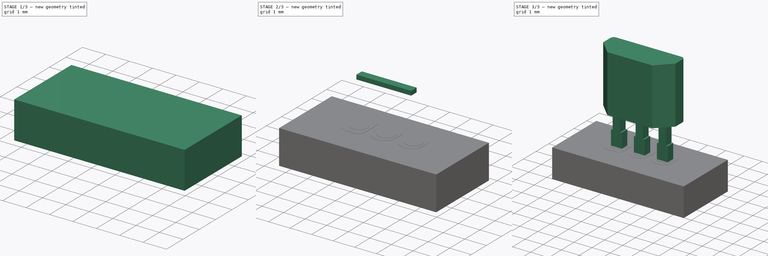
[diagram: build sequence overview — one tinted view per stage of 3, left to right]
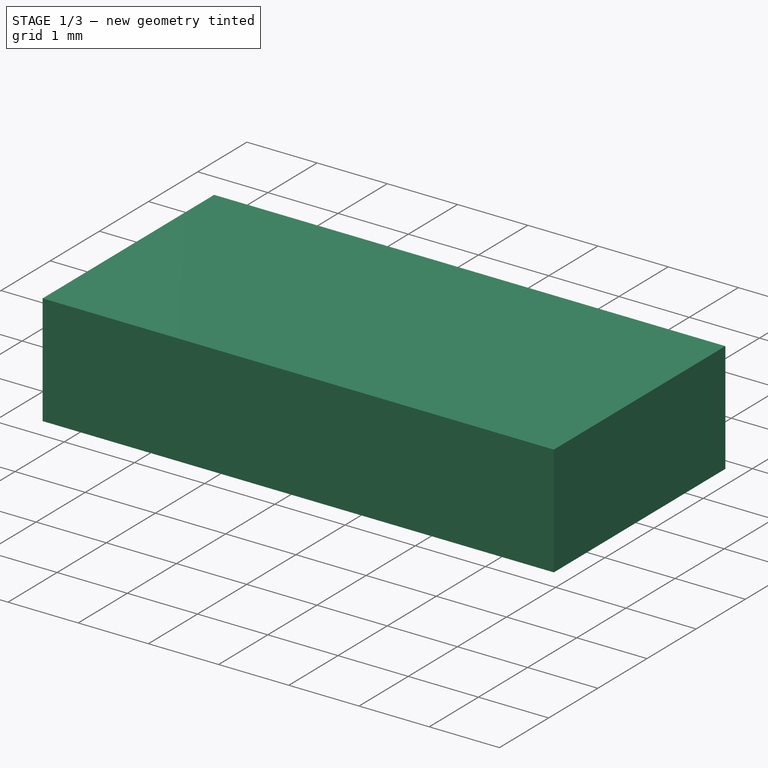
[diagram: stage 1 of 3 — iso view after this stage's code; geometry added in this stage tinted green]
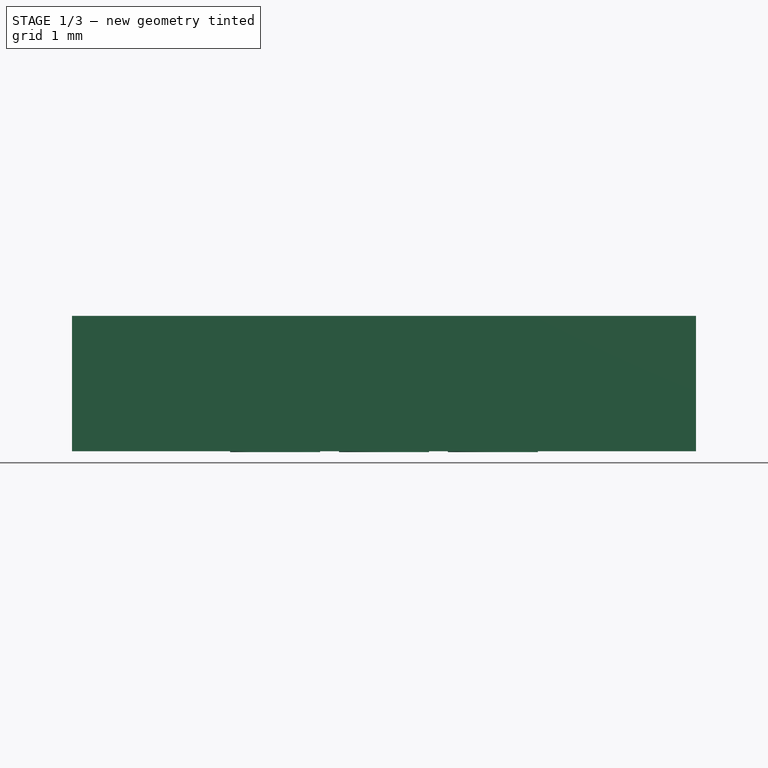
[diagram: stage 1 of 3 — front view after this stage's code; geometry added in this stage tinted green]
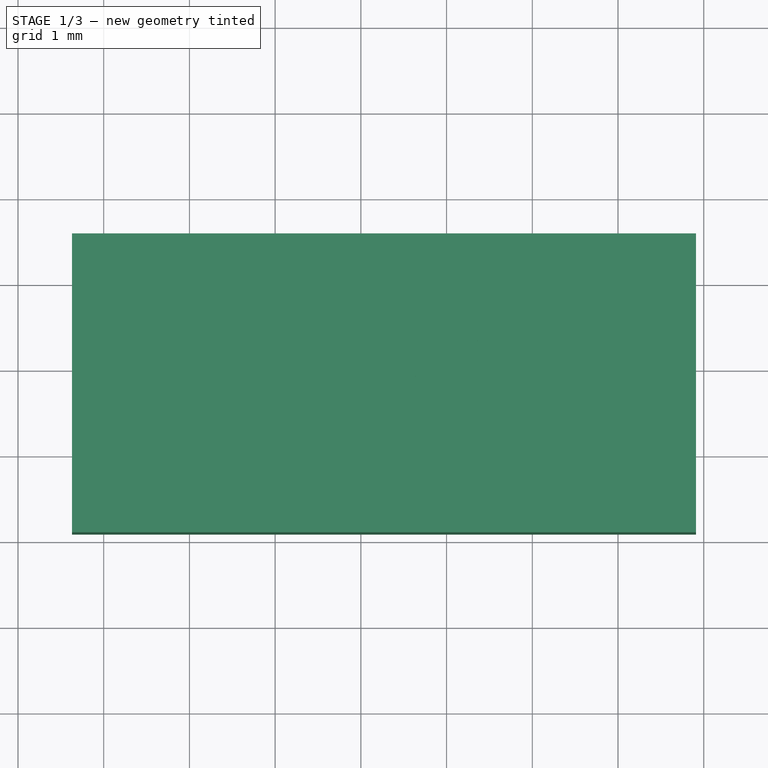
[diagram: stage 1 of 3 — top view after this stage's code; geometry added in this stage tinted green]
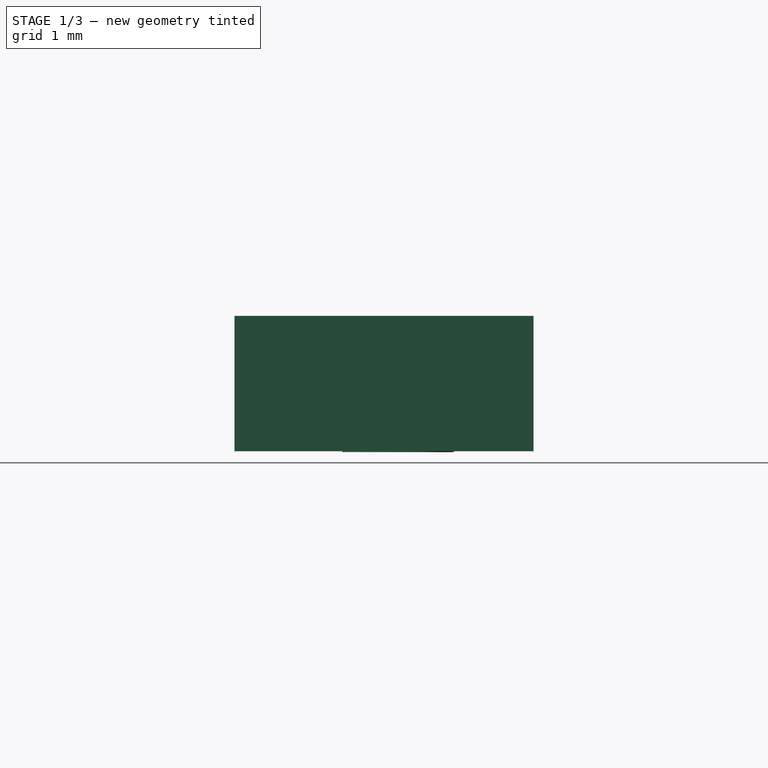
[diagram: stage 1 of 3 — right view after this stage's code; geometry added in this stage tinted green]
FCSTD DOCUMENT  (FreeCAD 0.18RUnknown)
Label: TO-92Flat
License: All rights reserved
LicenseURL: http://en.wikipedia.org/wiki/All_rights_reserved
objects: Part::FeaturePython×7, Sketcher::SketchObject×3, PartDesign::Pad×3, PartDesign::Body×2, PartDesign::Plane×1, PartDesign::LinearPattern×1, App::DocumentObjectGroup×1, Part::Feature×1
note: 21 computed .brp shape members not serialized (recipe doc carries the construction recipe); baked Part::Feature solids carry a one-line shape summary decoded from their .brp

FEATURE [Part::FeaturePython] BotPads  # a2plus imported part (geometry in sourceFile) (typed FeaturePython)
  fixedPosition = true
FEATURE [Part::FeaturePython] THPs  label="PTHs"  # a2plus imported part (geometry in sourceFile) (typed FeaturePython)
  fixedPosition = true
FEATURE [Part::FeaturePython] newPCB  label="Pcb"  # a2plus imported part (geometry in sourceFile) (typed FeaturePython)
  fixedPosition = true
FEATURE [App::DocumentObjectGroup] TO_92Flat_fp
  Group = -> [FCrtYd_lines,FFab_lines,Filk_lines,TopPads,BotPads,THPs,newPCB]
FEATURE [Part::Feature] Shape  label="TO-92Flat"
  shape: bbox 4 x 1.52 x 7.55 mm, 49 faces (baked)
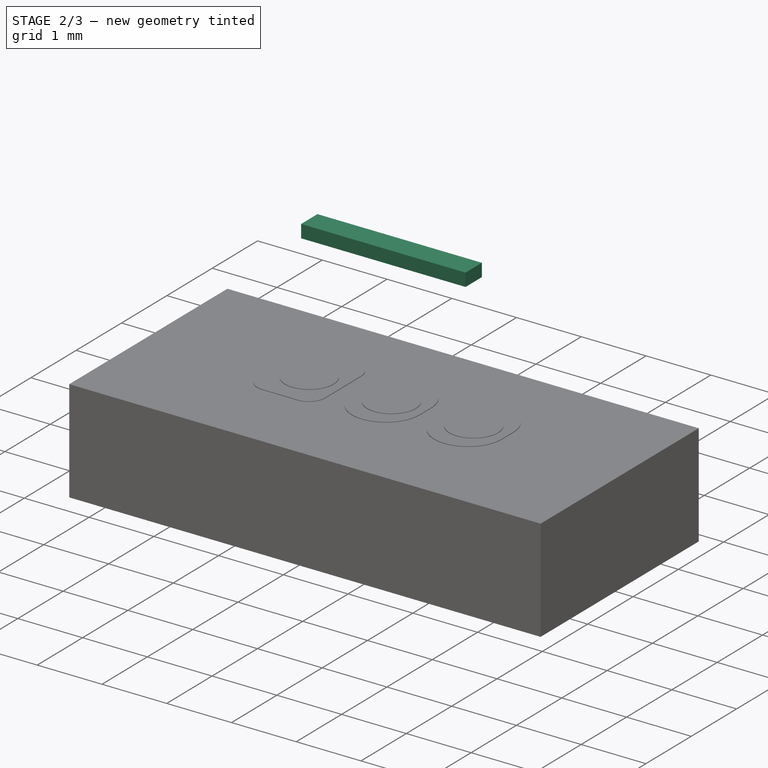
[diagram: stage 2 of 3 — iso view after this stage's code; geometry added in this stage tinted green]
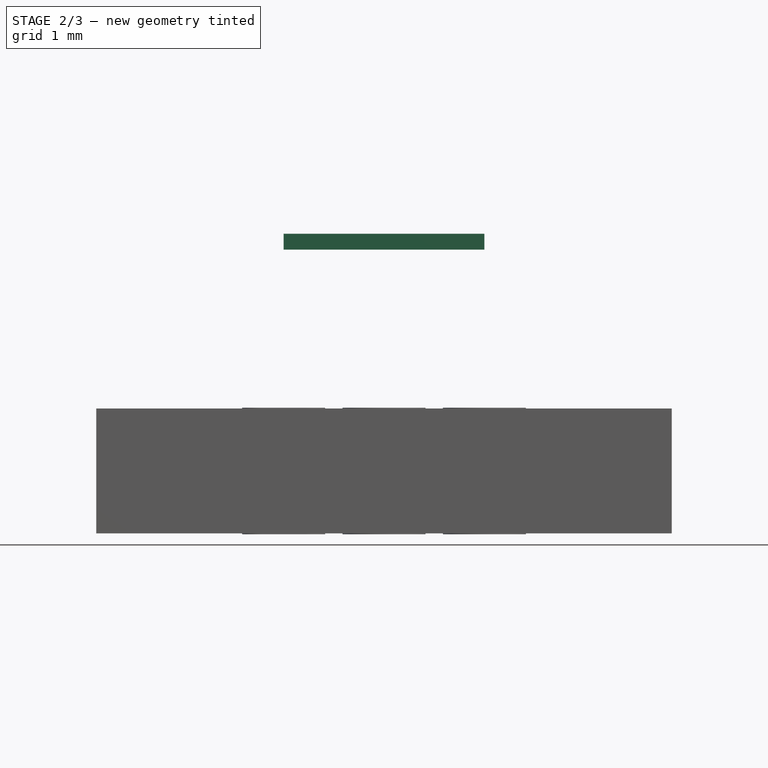
[diagram: stage 2 of 3 — front view after this stage's code; geometry added in this stage tinted green]
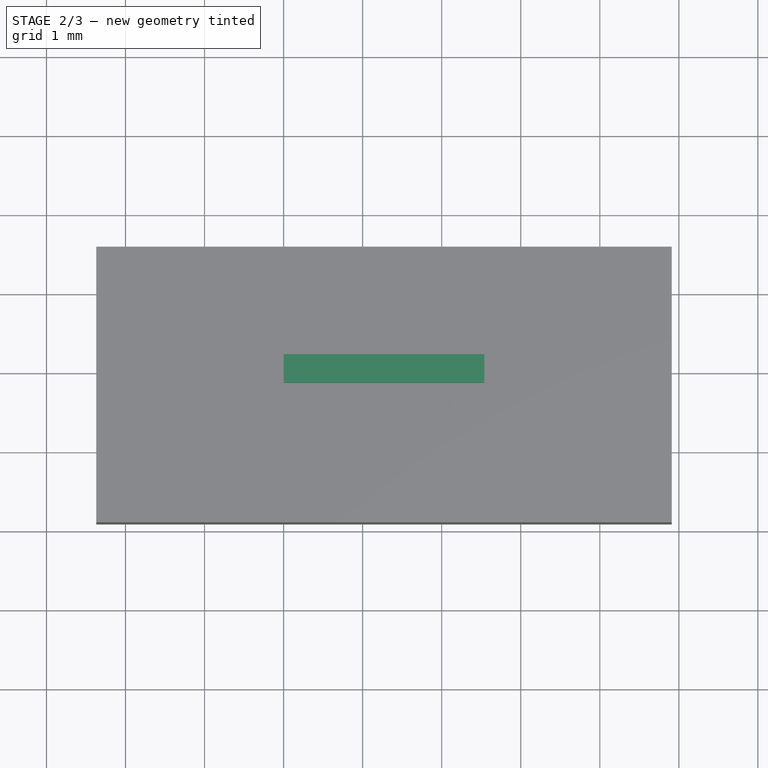
[diagram: stage 2 of 3 — top view after this stage's code; geometry added in this stage tinted green]
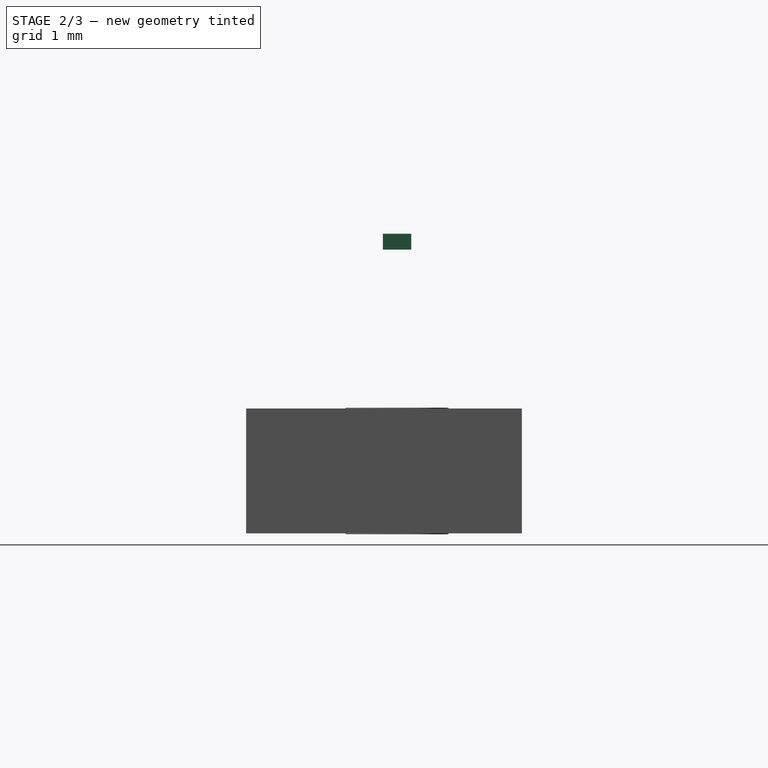
[diagram: stage 2 of 3 — right view after this stage's code; geometry added in this stage tinted green]
FEATURE [PartDesign::Body] Body
  Group = -> [Sketch,DatumPlane,Pad]
  Origin = -> Origin
  Tip = -> Pad
FEATURE [Sketcher::SketchObject] Sketch001
  MapMode = 5
  Placement = pos=(0,0,0) rot=(1,0,0;1.5708rad)
  Support = -> [XZ_Plane001]
  sketch-geometry (4):
    g0: LineSegment StartX=0 StartY=2.2 StartZ=0 EndX=2.54 EndY=2.2 EndZ=0
    g1: LineSegment StartX=2.54 StartY=2.2 StartZ=0 EndX=2.54 EndY=2 EndZ=0
    g2: LineSegment StartX=2.54 StartY=2 StartZ=0 EndX=0 EndY=2 EndZ=0
    g3: LineSegment StartX=0 StartY=2 StartZ=0 EndX=0 EndY=2.2 EndZ=0
  constraints (12):
    c: Coincident(g0,g1)
    c: Coincident(g1,g2)
    c: Coincident(g2,g3)
    c: Coincident(g3,g0)
    c: Horizontal(g0)
    c: Horizontal(g2)
    c: Vertical(g1)
    c: Vertical(g3)
    c: PointOnObject(g0,g-2)
    c: DistanceY(g-1,g2) = 2
    c: DistanceY(g3,g3) = 0.2
    c: DistanceX(g0,g0) = 2.54
FEATURE [PartDesign::Pad] Pad001  label="HelperToAllowPartDesingArray"
  Length = 0.36
  Length2 = 100
  Midplane = true
  Placement = pos=(0,0,0) rot=(1,0,0;1.5708rad)
  Profile = -> Sketch001
  Type = 0
FEATURE [PartDesign::Body] Body001
  Group = -> [Sketch001,Pad001,Sketch002,Pad002,LinearPattern]
  Origin = -> Origin001
  Tip = -> LinearPattern
FEATURE [Part::FeaturePython] FCrtYd_lines  label="FCrtYd"  # a2plus imported part (geometry in sourceFile) (typed FeaturePython)
  fixedPosition = true
FEATURE [Part::FeaturePython] FFab_lines  label="FFab"  # a2plus imported part (geometry in sourceFile) (typed FeaturePython)
  fixedPosition = true
FEATURE [Part::FeaturePython] Filk_lines  label="FrontSilk"  # a2plus imported part (geometry in sourceFile) (typed FeaturePython)
  fixedPosition = true
FEATURE [Part::FeaturePython] TopPads  # a2plus imported part (geometry in sourceFile) (typed FeaturePython)
  fixedPosition = true
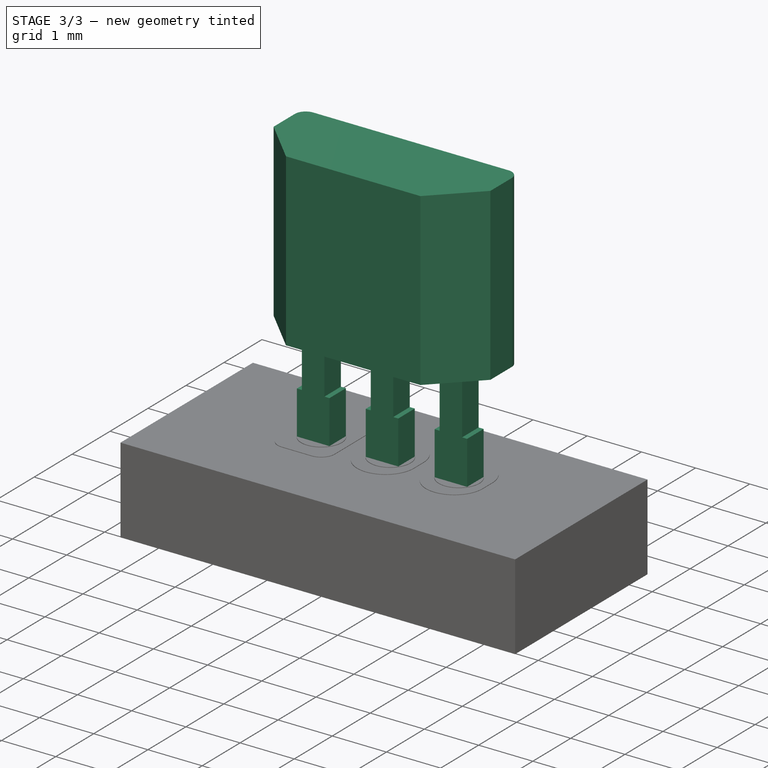
[diagram: stage 3 of 3 — iso view after this stage's code; geometry added in this stage tinted green]
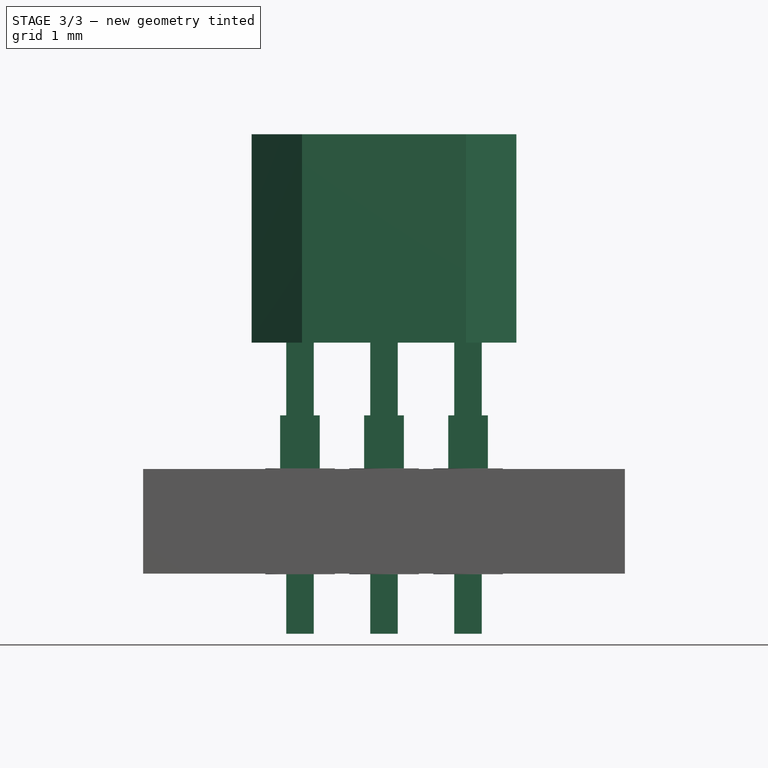
[diagram: stage 3 of 3 — front view after this stage's code; geometry added in this stage tinted green]
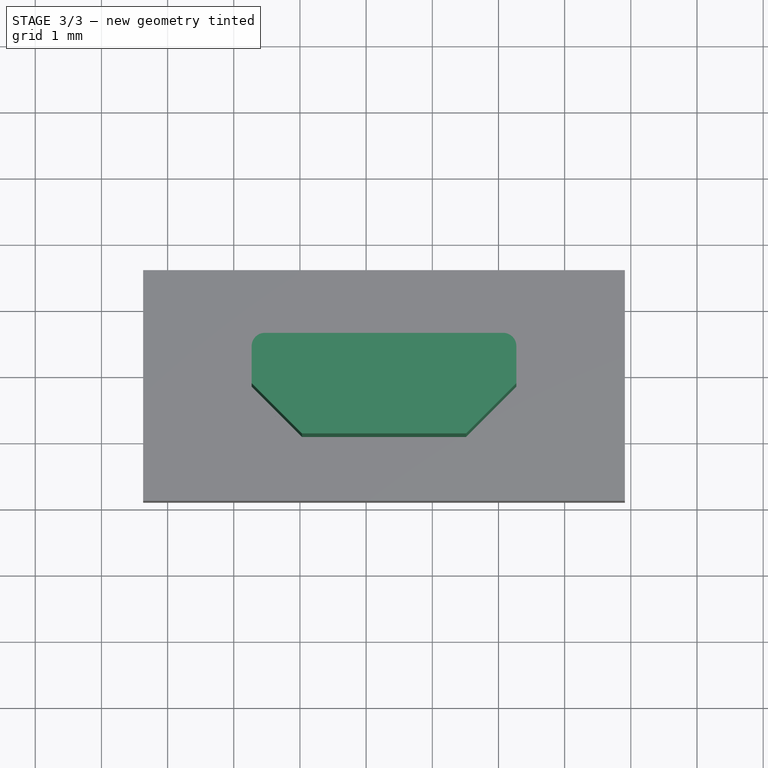
[diagram: stage 3 of 3 — top view after this stage's code; geometry added in this stage tinted green]
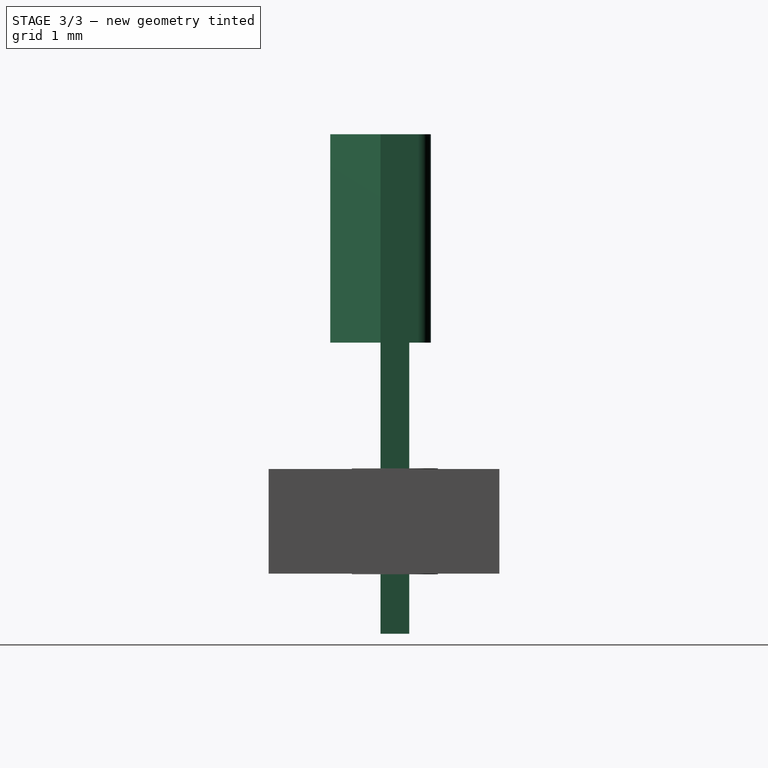
[diagram: stage 3 of 3 — right view after this stage's code; geometry added in this stage tinted green]
FEATURE [PartDesign::Plane] DatumPlane
  AttachmentOffset = pos=(0,0,1.9) rot=(0,0,1;0rad)
  Length = 24
  MapMode = 5
  Placement = pos=(0,0,1.9) rot=(0,0,1;0rad)
  ResizeMode = 0
  Support = -> [XY_Plane]
  Width = 24
  expr: AttachmentOffset.Base.z = 5.0499999999999998 - 3.1499999999999999
FEATURE [Sketcher::SketchObject] Sketch
  MapMode = 5
  Placement = pos=(0,0,1.9) rot=(0,0,1;0rad)
  Support = -> [DatumPlane]
  sketch-geometry (10):
    g0: LineSegment StartX=0.03 StartY=-0.9775 StartZ=0 EndX=2.51 EndY=-0.9775 EndZ=0
    g1: LineSegment StartX=2.51 StartY=-0.9775 StartZ=0 EndX=3.27 EndY=-0.2175 EndZ=0
    g2: LineSegment StartX=3.27 StartY=-0.2175 StartZ=0 EndX=3.27 EndY=0.3425 EndZ=0
    g3: LineSegment StartX=3.07 StartY=0.5425 StartZ=0 EndX=-0.53 EndY=0.5425 EndZ=0
    g4: LineSegment StartX=-0.73 StartY=0.3425 StartZ=0 EndX=-0.73 EndY=-0.2175 EndZ=0
    g5: LineSegment StartX=-0.73 StartY=-0.2175 StartZ=0 EndX=0.03 EndY=-0.9775 EndZ=0
    g6: ArcOfCircle CenterX=-0.53 CenterY=0.3425 CenterZ=0 NormalX=0 NormalY=0 NormalZ=1 AngleXU=0 Radius=0.2 StartAngle=1.5708 EndAngle=3.14159
    g7: ArcOfCircle CenterX=3.07 CenterY=0.3425 CenterZ=0 NormalX=0 NormalY=0 NormalZ=1 AngleXU=0 Radius=0.2 StartAngle=0 EndAngle=1.5708
    g8: LineSegment [constr] StartX=-0.73 StartY=-0.2175 StartZ=0 EndX=3.27 EndY=-0.2175 EndZ=0
    g9: LineSegment [constr] StartX=1.27 StartY=0.5425 StartZ=0 EndX=1.27 EndY=-0.9775 EndZ=0
  constraints (27):
    c: Horizontal(g0)
    c: Horizontal(g3)
    c: Coincident(g5,g0)
    c: Coincident(g0,g1)
    c: Coincident(g4,g5)
    c: Coincident(g1,g2)
    c: Vertical(g4)
    c: Vertical(g2)
    c: Angle(g5,g0) = -2.35619
    c: Angle(g0,g1) = -2.35619
    c: Tangent(g4,g6) = -1.5708
    c: Tangent(g3,g6) = -1.5708
    c: Tangent(g3,g7) = -1.5708
    c: Tangent(g2,g7) = -1.5708
    c: Equal(g7,g6)
    c: Radius(g6) = 0.2
    c: Coincident(g8,g4)
    c: Coincident(g8,g1)
    c: Horizontal(g8)
    c: DistanceY(g4,g3) = 0.76
    c: DistanceY(g0,g3) = 1.52
    c: DistanceX(g4,g2) = 4
    c: PointOnObject(g9,g3)
    c: PointOnObject(g9,g0)
    c: Symmetric(g3,g3,g9)
    c: DistanceX(g-1,g9) = 1.27
    c: DistanceY(g-1,g3) = 0.5425
FEATURE [PartDesign::Pad] Pad  label="BodyPad"
  Length = 3.15
  Length2 = 100
  Placement = pos=(0,0,1.9) rot=(0,0,1;0rad)
  Profile = -> Sketch
  Type = 0
FEATURE [Sketcher::SketchObject] Sketch002
  ExternalGeometry = -> [Pad001]
  MapMode = 5
  Placement = pos=(0,0,0) rot=(1,0,0;1.5708rad)
  Support = -> [XZ_Plane001]
  expr: Constraints[28] = (0.34999999999999998 + 0.47999999999999998) / 2
  sketch-geometry (12):
    g0: LineSegment StartX=0.2075 StartY=2 StartZ=0 EndX=0.2075 EndY=0.8 EndZ=0
    g1: LineSegment StartX=0.2075 StartY=0.8 StartZ=0 EndX=0.3 EndY=0.8 EndZ=0
    g2: LineSegment StartX=0.3 StartY=0.8 StartZ=0 EndX=0.3 EndY=0 EndZ=0
    g3: LineSegment StartX=0.3 StartY=0 StartZ=0 EndX=0.2075 EndY=0 EndZ=0
    g4: LineSegment StartX=0.2075 StartY=0 StartZ=0 EndX=0.2075 EndY=-2.5 EndZ=0
    g5: LineSegment StartX=-0.2075 StartY=2 StartZ=0 EndX=-0.2075 EndY=0.8 EndZ=0
    g6: LineSegment StartX=-0.2075 StartY=0.8 StartZ=0 EndX=-0.3 EndY=0.8 EndZ=0
    g7: LineSegment StartX=-0.3 StartY=0.8 StartZ=0 EndX=-0.3 EndY=0 EndZ=0
    g8: LineSegment StartX=-0.3 StartY=0 StartZ=0 EndX=-0.2075 EndY=0 EndZ=0
    g9: LineSegment StartX=-0.2075 StartY=0 StartZ=0 EndX=-0.2075 EndY=-2.5 EndZ=0
    g10: LineSegment StartX=-0.2075 StartY=2 StartZ=0 EndX=0.2075 EndY=2 EndZ=0
    g11: LineSegment StartX=-0.2075 StartY=-2.5 StartZ=0 EndX=0.2075 EndY=-2.5 EndZ=0
  constraints (35):
    c: Vertical(g0)
    c: Coincident(g0,g1)
    c: Horizontal(g1)
    c: Coincident(g1,g2)
    c: PointOnObject(g2,g-1)
    c: Vertical(g2)
    c: Coincident(g2,g3)
    c: PointOnObject(g3,g-1)
    c: Coincident(g3,g4)
    c: Vertical(g4)
    c: PointOnObject(g0,g-3)
    c: Vertical(g5)
    c: Coincident(g5,g6)
    c: Horizontal(g6)
    c: Coincident(g6,g7)
    c: Vertical(g7)
    c: Coincident(g7,g8)
    c: Coincident(g8,g9)
    c: Vertical(g9)
    c: Coincident(g10,g5)
    c: Coincident(g10,g0)
    c: Horizontal(g10)
    c: Symmetric(g0,g5,g-2)
    c: Coincident(g11,g9)
    c: Coincident(g11,g4)
    c: Horizontal(g11)
    c: Equal(g10,g11)
    c: Equal(g3,g8)
    c: DistanceX(g11,g11) = 0.415
    c: DistanceY(g2,g2) = 0.8
    c: Equal(g8,g6)
    c: DistanceX(g7,g2) = 0.6
    c: PointOnObject(g8,g-1)
    c: PointOnObject(g7,g-1)
    c: DistanceY(g9,g9) = 2.5
FEATURE [PartDesign::Pad] Pad002  label="LeadPad"
  BaseFeature = -> Pad001
  Length = 0.435
  Length2 = 100
  Midplane = true
  Placement = pos=(0,0,0) rot=(1,0,0;1.5708rad)
  Profile = -> Sketch002
  Type = 0
  expr: Length = (0.35999999999999999 + 0.51000000000000001) / 2
FEATURE [PartDesign::LinearPattern] LinearPattern  label="LeadArray"
  BaseFeature = -> Pad002
  Direction = -> X_Axis001
  Length = 2.54
  Occurrences = 3
  Originals = -> [Pad002]
  Placement = pos=(0,0,0) rot=(1,0,0;1.5708rad)
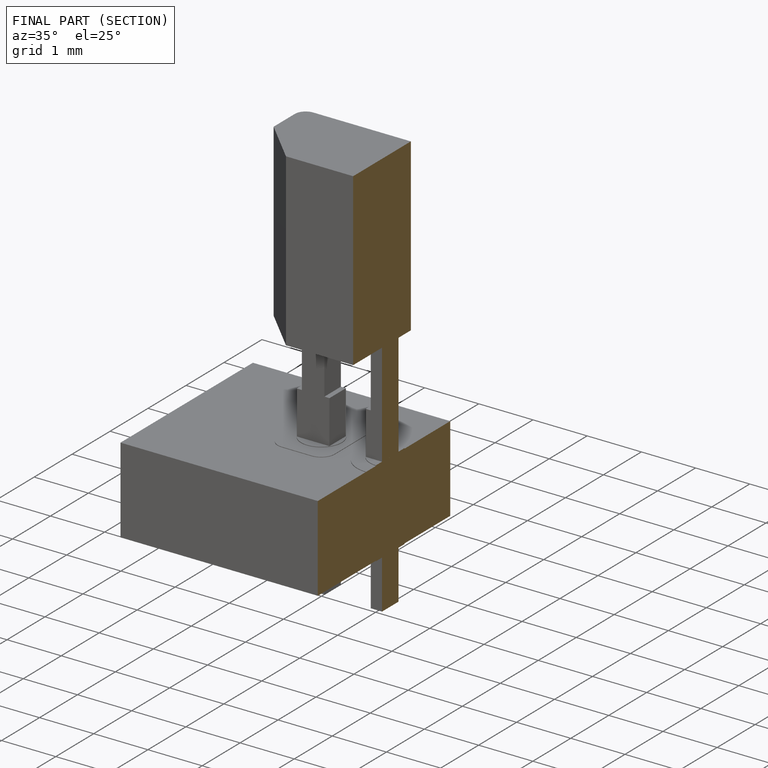
[diagram: finished part — half-section view (interior)]
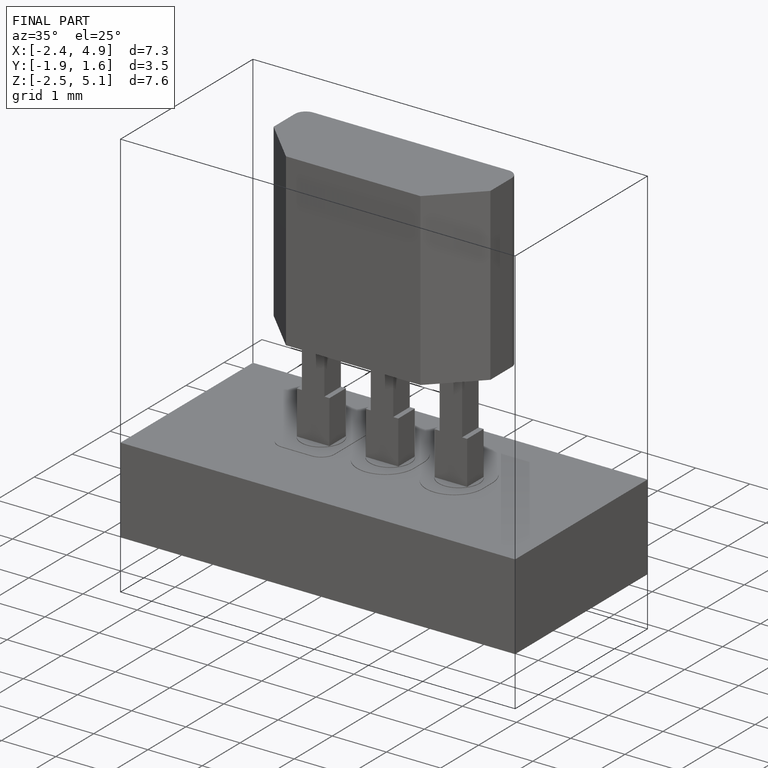
[diagram: finished part — iso view with bounding-box wireframe]
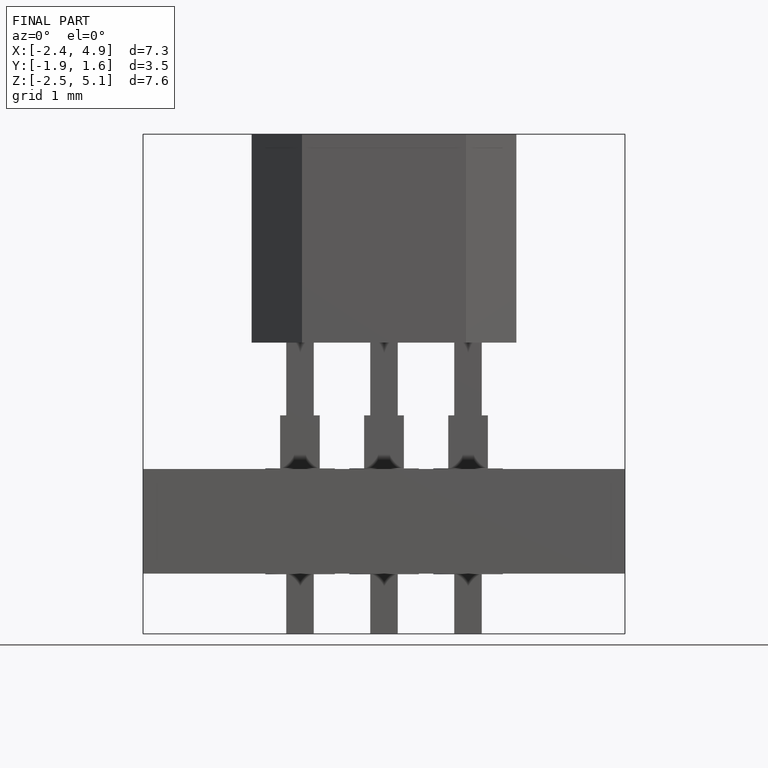
[diagram: finished part — front view with bounding-box wireframe]
